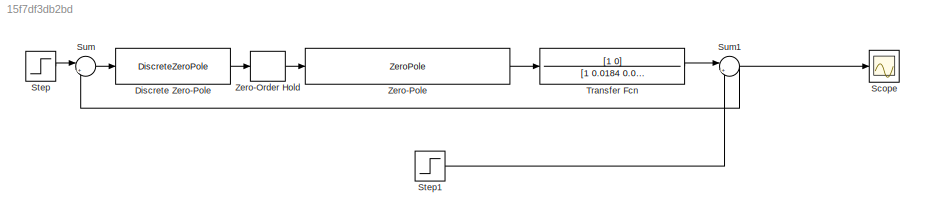
MODEL slx_15f7df3db2bd
KIND model
CONFIG AbsTol = auto
CONFIG EnableMultiTasking = off
CONFIG FixedStep = 0.002
CONFIG MaxStep = auto
CONFIG MinStep = auto
CONFIG RelTol = 1e-3
CONFIG SampleTimeConstraint = Unconstrained
CONFIG SolverName = ode4
CONFIG StartTime = 0.0
CONFIG StopTime = 50
BLOCK [DiscreteZeroPole] Discrete Zero-Pole
  Gain = 100.03
  Poles = [1 -1]
  SampleTime = 0.02
  Zeros = [1 1]
BLOCK [Scope] Scope
  Floating = off
  NumInputPorts = 1
  Ports = [1]
  ScopeSpecificationString = Simulink.scopes.TimeScopeBlockCfg('CurrentConfiguration', extmgr.ConfigurationSet(extmgr.Configuration('Core','General UI',true),extmgr.Configuration('Core','Source UI',true),extmgr.Configuration('Sources','WiredSimulink',true),extmgr.Configuration('Visuals','Time Domain',true,'SerializedDisplays',{struct('MinYLimReal','-24.75','MaxYLimReal','2.75','YLabelReal','','MinYLimMag','0.00000','MaxYLimMa...<+1381ch>
BLOCK [Step] Step
  After = 0
  SampleTime = 0.02
  Time = 0
BLOCK [Step] Step1
  After = -22
  SampleTime = 0
  Time = 0.5
BLOCK [Sum] Sum
  Inputs = |+-
  Ports = [2, 1]
BLOCK [Sum] Sum1
  Inputs = |++
  Ports = [2, 1]
BLOCK [TransferFcn] Transfer Fcn
  Denominator = [1 0.0184 0.02483]
  Numerator = [1 0]
BLOCK [ZeroOrderHold] Zero-Order Hold
  SampleTime = 0.02
BLOCK [ZeroPole] Zero-Pole
  Gain = 0.6942
  Poles = [-0.5809 -0.065]
  Zeros = [-0.0543 -0.0047]
LINE Discrete Zero-Pole:1 -> Zero-Order Hold:1
LINE Step1:1 -> Sum1:2
LINE Step:1 -> Sum:1
NET Sum1:1 -> Scope:1, Sum:2
LINE Sum:1 -> Discrete Zero-Pole:1
LINE Transfer Fcn:1 -> Sum1:1
LINE Zero-Order Hold:1 -> Zero-Pole:1
LINE Zero-Pole:1 -> Transfer Fcn:1
note: NET lines group one-source signal fan-out (src -> all destinations, sorted); 1:1 wires keep LINE
